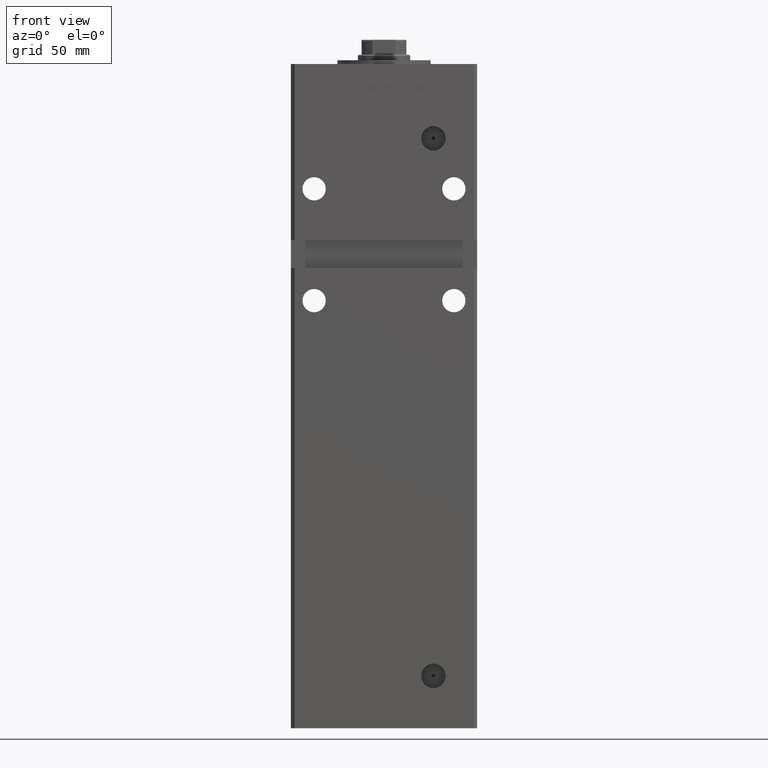
[diagram: clean part render]
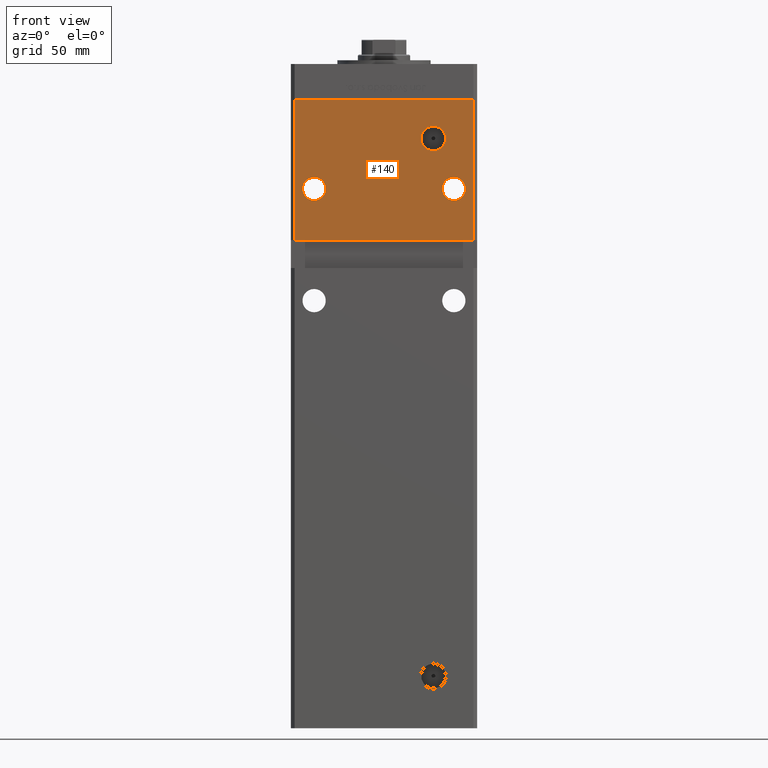
[diagram: same view with one face highlighted and labeled with its STEP entity id]
A machine part, front view. The second image highlights one B-rep face of the part: STEP entity #140.
In plain terms, the highlighted planar face has unit normal (0, 1, 0).
Its self-contained STEP definition (entity closure, byte-faithful):
#140 = ADVANCED_FACE ( 'NONE', ( #24904, #5270, #50412, #33499 ), #45592, .F. ) ;
#436 = DIRECTION ( 'NONE',  ( 0.000000000000000000, -0.000000000000000000, 1.000000000000000000 ) ) ;
#556 = CIRCLE ( 'NONE', #47735, 6.249999999999977796 ) ;
#1771 = ORIENTED_EDGE ( 'NONE', *, *, #38434, .T. ) ;
#2297 = DIRECTION ( 'NONE',  ( -0.000000000000000000, -0.000000000000000000, -1.000000000000000000 ) ) ;
#2353 = CIRCLE ( 'NONE', #44435, 6.249999999999977796 ) ;
#2375 = VERTEX_POINT ( 'NONE', #42626 ) ;
#3228 = CARTESIAN_POINT ( 'NONE',  ( 26.49999999999995381, -43.50000000000000000, 297.5000000000000000 ) ) ;
#4786 = ORIENTED_EDGE ( 'NONE', *, *, #22375, .T. ) ;
#5270 = FACE_BOUND ( 'NONE', #10868, .T. ) ;
#5331 = EDGE_CURVE ( 'NONE', #8717, #37368, #27022, .T. ) ;
#5560 = ORIENTED_EDGE ( 'NONE', *, *, #52686, .T. ) ;
#5708 = LINE ( 'NONE', #14293, #44506 ) ;
#6021 = EDGE_LOOP ( 'NONE', ( #45564, #46754, #41522, #45251 ) ) ;
#7278 = VERTEX_POINT ( 'NONE', #47171 ) ;
#7722 = DIRECTION ( 'NONE',  ( -0.000000000000000000, 1.000000000000000000, -0.000000000000000000 ) ) ;
#8317 = CARTESIAN_POINT ( 'NONE',  ( 37.50000000000000000, -43.50000000000000000, 264.2500000000000000 ) ) ;
#8717 = VERTEX_POINT ( 'NONE', #21758 ) ;
#9276 = DIRECTION ( 'NONE',  ( 0.000000000000000000, 0.000000000000000000, 1.000000000000000000 ) ) ;
#9697 = DIRECTION ( 'NONE',  ( 1.000000000000000000, 0.000000000000000000, 0.000000000000000000 ) ) ;
#10203 = CIRCLE ( 'NONE', #17080, 6.579999999999975202 ) ;
#10396 = CIRCLE ( 'NONE', #26705, 6.249999999999977796 ) ;
#10868 = EDGE_LOOP ( 'NONE', ( #1771, #5560 ) ) ;
#11746 = DIRECTION ( 'NONE',  ( 0.000000000000000000, 0.000000000000000000, -1.000000000000000000 ) ) ;
#12324 = CARTESIAN_POINT ( 'NONE',  ( 26.49999999999995381, -43.50000000000000000, 290.9200000000000159 ) ) ;
#12546 = DIRECTION ( 'NONE',  ( 0.000000000000000000, 1.000000000000000000, 0.000000000000000000 ) ) ;
#13388 = DIRECTION ( 'NONE',  ( -1.000000000000000000, -0.000000000000000000, -0.000000000000000000 ) ) ;
#14216 = CIRCLE ( 'NONE', #45100, 6.579999999999975202 ) ;
#14293 = CARTESIAN_POINT ( 'NONE',  ( 47.99999999999998579, -43.50000000000000000, 318.5000000000000000 ) ) ;
#15845 = DIRECTION ( 'NONE',  ( 0.000000000000000000, 0.000000000000000000, -1.000000000000000000 ) ) ;
#17080 = AXIS2_PLACEMENT_3D ( 'NONE', #48565, #7722, #11746 ) ;
#17683 = LINE ( 'NONE', #50207, #45064 ) ;
#18208 = ORIENTED_EDGE ( 'NONE', *, *, #52813, .T. ) ;
#18713 = CARTESIAN_POINT ( 'NONE',  ( -37.50000000000000000, -43.50000000000000000, 264.2500000000000000 ) ) ;
#19615 = DIRECTION ( 'NONE',  ( -0.000000000000000000, 1.000000000000000000, -0.000000000000000000 ) ) ;
#20134 = DIRECTION ( 'NONE',  ( 0.000000000000000000, 1.000000000000000000, 0.000000000000000000 ) ) ;
#20442 = EDGE_CURVE ( 'NONE', #23714, #37368, #17683, .T. ) ;
#21758 = CARTESIAN_POINT ( 'NONE',  ( -47.99999999999998579, -43.50000000000000000, 318.5000000000000000 ) ) ;
#22107 = DIRECTION ( 'NONE',  ( -0.000000000000000000, -0.000000000000000000, -1.000000000000000000 ) ) ;
#22375 = EDGE_CURVE ( 'NONE', #31292, #7278, #14216, .T. ) ;
#23162 = VERTEX_POINT ( 'NONE', #26714 ) ;
#23714 = VERTEX_POINT ( 'NONE', #25999 ) ;
#23807 = VERTEX_POINT ( 'NONE', #18713 ) ;
#24010 = EDGE_CURVE ( 'NONE', #32273, #2375, #556, .T. ) ;
#24119 = DIRECTION ( 'NONE',  ( 0.000000000000000000, 0.000000000000000000, 1.000000000000000000 ) ) ;
#24904 = FACE_BOUND ( 'NONE', #36660, .T. ) ;
#25443 = CARTESIAN_POINT ( 'NONE',  ( 37.50000000000000000, -43.50000000000000000, 270.4999999999999432 ) ) ;
#25830 = CARTESIAN_POINT ( 'NONE',  ( -47.99999999999998579, -43.50000000000000000, 318.5000000000000000 ) ) ;
#25999 = CARTESIAN_POINT ( 'NONE',  ( 47.99999999999998579, -43.50000000000000000, 243.0000000000000000 ) ) ;
#26240 = CARTESIAN_POINT ( 'NONE',  ( -47.99999999999998579, -43.50000000000000000, 318.5000000000000000 ) ) ;
#26705 = AXIS2_PLACEMENT_3D ( 'NONE', #49637, #37008, #24119 ) ;
#26714 = CARTESIAN_POINT ( 'NONE',  ( 47.99999999999998579, -43.50000000000000000, 318.5000000000000000 ) ) ;
#27022 = LINE ( 'NONE', #26240, #51567 ) ;
#27461 = CIRCLE ( 'NONE', #45513, 6.249999999999977796 ) ;
#27797 = VERTEX_POINT ( 'NONE', #52710 ) ;
#29210 = EDGE_LOOP ( 'NONE', ( #4786, #18208 ) ) ;
#31292 = VERTEX_POINT ( 'NONE', #12324 ) ;
#32273 = VERTEX_POINT ( 'NONE', #8317 ) ;
#32275 = EDGE_CURVE ( 'NONE', #2375, #32273, #2353, .T. ) ;
#33303 = CARTESIAN_POINT ( 'NONE',  ( -47.99999999999998579, -43.50000000000000000, 243.0000000000000000 ) ) ;
#33499 = FACE_BOUND ( 'NONE', #29210, .T. ) ;
#36114 = ORIENTED_EDGE ( 'NONE', *, *, #32275, .T. ) ;
#36594 = ORIENTED_EDGE ( 'NONE', *, *, #24010, .T. ) ;
#36660 = EDGE_LOOP ( 'NONE', ( #36114, #36594 ) ) ;
#37008 = DIRECTION ( 'NONE',  ( 0.000000000000000000, 1.000000000000000000, 0.000000000000000000 ) ) ;
#37012 = DIRECTION ( 'NONE',  ( 0.000000000000000000, 0.000000000000000000, 1.000000000000000000 ) ) ;
#37136 = EDGE_CURVE ( 'NONE', #8717, #23162, #51070, .T. ) ;
#37368 = VERTEX_POINT ( 'NONE', #33303 ) ;
#38434 = EDGE_CURVE ( 'NONE', #27797, #23807, #10396, .T. ) ;
#40245 = AXIS2_PLACEMENT_3D ( 'NONE', #41551, #42337, #436 ) ;
#41139 = VECTOR ( 'NONE', #9697, 1000.000000000000000 ) ;
#41522 = ORIENTED_EDGE ( 'NONE', *, *, #46645, .F. ) ;
#41551 = CARTESIAN_POINT ( 'NONE',  ( -47.99999999999998579, -43.50000000000000000, 318.5000000000000000 ) ) ;
#41783 = CARTESIAN_POINT ( 'NONE',  ( 37.50000000000000000, -43.50000000000000000, 270.4999999999999432 ) ) ;
#41819 = DIRECTION ( 'NONE',  ( 0.000000000000000000, 0.000000000000000000, 1.000000000000000000 ) ) ;
#42309 = DIRECTION ( 'NONE',  ( 0.000000000000000000, 1.000000000000000000, 0.000000000000000000 ) ) ;
#42337 = DIRECTION ( 'NONE',  ( 0.000000000000000000, 1.000000000000000000, 0.000000000000000000 ) ) ;
#42626 = CARTESIAN_POINT ( 'NONE',  ( 37.50000000000000000, -43.50000000000000000, 276.7499999999999432 ) ) ;
#44435 = AXIS2_PLACEMENT_3D ( 'NONE', #25443, #20134, #41819 ) ;
#44506 = VECTOR ( 'NONE', #22107, 1000.000000000000000 ) ;
#45064 = VECTOR ( 'NONE', #13388, 1000.000000000000000 ) ;
#45100 = AXIS2_PLACEMENT_3D ( 'NONE', #3228, #19615, #15845 ) ;
#45251 = ORIENTED_EDGE ( 'NONE', *, *, #37136, .F. ) ;
#45513 = AXIS2_PLACEMENT_3D ( 'NONE', #49374, #12546, #37012 ) ;
#45564 = ORIENTED_EDGE ( 'NONE', *, *, #5331, .T. ) ;
#45592 = PLANE ( 'NONE',  #40245 ) ;
#46645 = EDGE_CURVE ( 'NONE', #23162, #23714, #5708, .T. ) ;
#46754 = ORIENTED_EDGE ( 'NONE', *, *, #20442, .F. ) ;
#47171 = CARTESIAN_POINT ( 'NONE',  ( 26.49999999999995381, -43.50000000000000000, 304.0799999999999841 ) ) ;
#47735 = AXIS2_PLACEMENT_3D ( 'NONE', #41783, #42309, #9276 ) ;
#48565 = CARTESIAN_POINT ( 'NONE',  ( 26.49999999999995381, -43.50000000000000000, 297.5000000000000000 ) ) ;
#49374 = CARTESIAN_POINT ( 'NONE',  ( -37.50000000000000000, -43.50000000000000000, 270.4999999999999432 ) ) ;
#49637 = CARTESIAN_POINT ( 'NONE',  ( -37.50000000000000000, -43.50000000000000000, 270.4999999999999432 ) ) ;
#50207 = CARTESIAN_POINT ( 'NONE',  ( -49.99999999999998579, -43.50000000000000000, 243.0000000000000000 ) ) ;
#50412 = FACE_OUTER_BOUND ( 'NONE', #6021, .T. ) ;
#51070 = LINE ( 'NONE', #25830, #41139 ) ;
#51567 = VECTOR ( 'NONE', #2297, 1000.000000000000000 ) ;
#52686 = EDGE_CURVE ( 'NONE', #23807, #27797, #27461, .T. ) ;
#52710 = CARTESIAN_POINT ( 'NONE',  ( -37.50000000000000000, -43.50000000000000000, 276.7499999999999432 ) ) ;
#52813 = EDGE_CURVE ( 'NONE', #7278, #31292, #10203, .T. ) ;